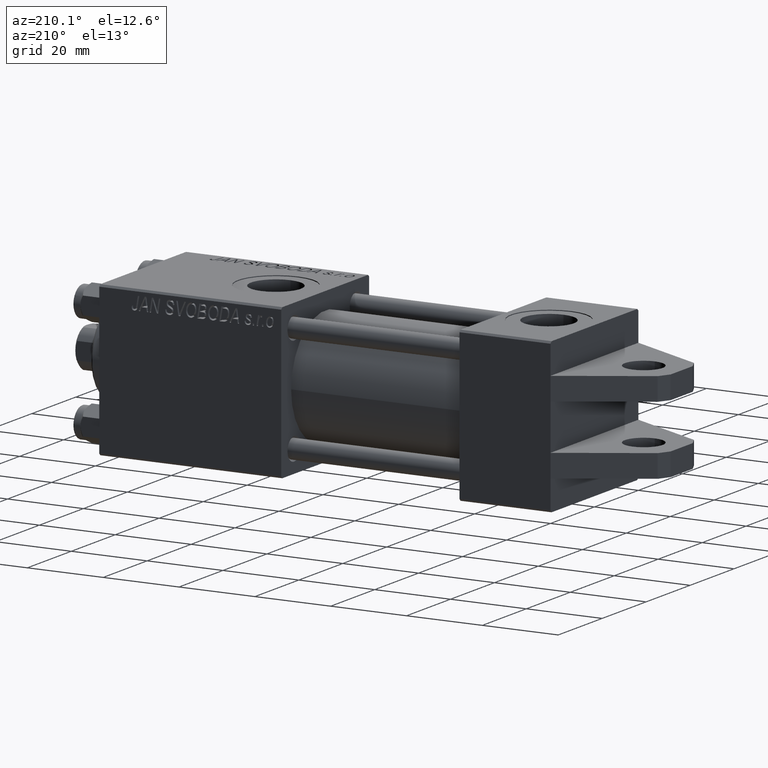
[diagram: clean part render]
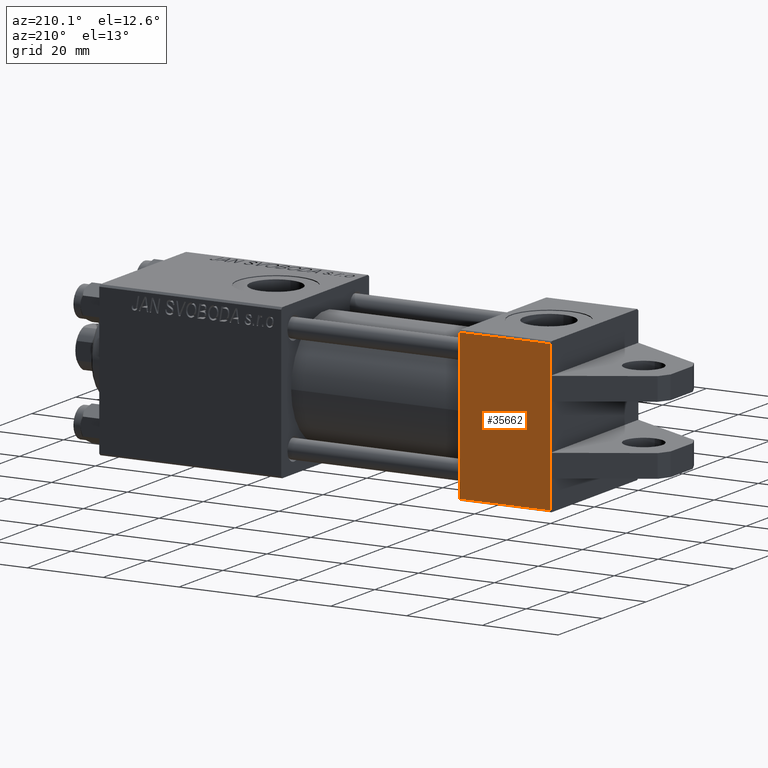
[diagram: same view with one face highlighted and labeled with its STEP entity id]
A machine part, auxiliary view. The second image highlights one B-rep face of the part: STEP entity #35662.
In plain terms, the highlighted planar face has unit normal (0, -1, -0).
Its self-contained STEP definition (entity closure, byte-faithful):
#609 = DIRECTION ( 'NONE',  ( -0.000000000000000000, -1.000000000000000000, -0.000000000000000000 ) ) ;
#702 = CARTESIAN_POINT ( 'NONE',  ( 24.00000000000000000, -19.49999999999999289, 19.99999999999998934 ) ) ;
#1001 = CARTESIAN_POINT ( 'NONE',  ( 24.00000000000000000, -19.49999999999999289, 19.99999999999998934 ) ) ;
#2197 = VECTOR ( 'NONE', #609, 1000.000000000000000 ) ;
#2300 = VECTOR ( 'NONE', #8480, 1000.000000000000000 ) ;
#3602 = ORIENTED_EDGE ( 'NONE', *, *, #26583, .T. ) ;
#3939 = CARTESIAN_POINT ( 'NONE',  ( 0.000000000000000000, 20.00000000000000000, 20.00000000000000000 ) ) ;
#3968 = LINE ( 'NONE', #702, #2300 ) ;
#4026 = ORIENTED_EDGE ( 'NONE', *, *, #27366, .F. ) ;
#4373 = LINE ( 'NONE', #34994, #2197 ) ;
#4385 = CARTESIAN_POINT ( 'NONE',  ( 0.000000000000000000, -12.00000000000000000, 19.99999999999999289 ) ) ;
#4868 = ORIENTED_EDGE ( 'NONE', *, *, #38655, .T. ) ;
#5478 = LINE ( 'NONE', #36827, #39793 ) ;
#6316 = VERTEX_POINT ( 'NONE', #14766 ) ;
#6573 = DIRECTION ( 'NONE',  ( 0.000000000000000000, -1.000000000000000000, -2.602085213965210149E-16 ) ) ;
#7953 = DIRECTION ( 'NONE',  ( 0.000000000000000000, 1.000000000000000000, 2.602085213965210149E-16 ) ) ;
#8303 = CARTESIAN_POINT ( 'NONE',  ( 0.000000000000000000, 20.00000000000000000, 20.00000000000000000 ) ) ;
#8480 = DIRECTION ( 'NONE',  ( 1.000000000000000000, 0.000000000000000000, 0.000000000000000000 ) ) ;
#9409 = VECTOR ( 'NONE', #19003, 1000.000000000000000 ) ;
#10222 = DIRECTION ( 'NONE',  ( -0.000000000000000000, 1.000000000000000000, -0.000000000000000000 ) ) ;
#11561 = LINE ( 'NONE', #49222, #19862 ) ;
#14766 = CARTESIAN_POINT ( 'NONE',  ( 0.000000000000000000, -19.49999999999999289, 19.99999999999998934 ) ) ;
#16655 = VECTOR ( 'NONE', #25007, 1000.000000000000000 ) ;
#17872 = CARTESIAN_POINT ( 'NONE',  ( 24.00000000000000000, 19.50000000000000000, 20.00000000000000000 ) ) ;
#18989 = DIRECTION ( 'NONE',  ( 0.000000000000000000, 2.602085213965210149E-16, -1.000000000000000000 ) ) ;
#19003 = DIRECTION ( 'NONE',  ( 0.000000000000000000, -1.000000000000000000, -2.602085213965210149E-16 ) ) ;
#19135 = VERTEX_POINT ( 'NONE', #29649 ) ;
#19862 = VECTOR ( 'NONE', #6573, 1000.000000000000000 ) ;
#22802 = CARTESIAN_POINT ( 'NONE',  ( 0.000000000000000000, 19.50000000000000000, 20.00000000000000000 ) ) ;
#22841 = VERTEX_POINT ( 'NONE', #4385 ) ;
#23600 = DIRECTION ( 'NONE',  ( 0.000000000000000000, -1.000000000000000000, -2.602085213965210149E-16 ) ) ;
#24073 = DIRECTION ( 'NONE',  ( -1.000000000000000000, 0.000000000000000000, 0.000000000000000000 ) ) ;
#24681 = VERTEX_POINT ( 'NONE', #1001 ) ;
#25007 = DIRECTION ( 'NONE',  ( 0.000000000000000000, -1.000000000000000000, -2.602085213965210149E-16 ) ) ;
#25292 = ORIENTED_EDGE ( 'NONE', *, *, #38412, .T. ) ;
#26205 = VECTOR ( 'NONE', #24073, 1000.000000000000000 ) ;
#26539 = LINE ( 'NONE', #3939, #9409 ) ;
#26583 = EDGE_CURVE ( 'NONE', #48235, #33767, #27375, .T. ) ;
#27126 = EDGE_LOOP ( 'NONE', ( #3602, #29870, #36416, #4026, #4868, #36073, #42725, #25292 ) ) ;
#27366 = EDGE_CURVE ( 'NONE', #22841, #19135, #5478, .T. ) ;
#27375 = LINE ( 'NONE', #8303, #49370 ) ;
#27831 = LINE ( 'NONE', #39386, #26205 ) ;
#28220 = VERTEX_POINT ( 'NONE', #34920 ) ;
#29649 = CARTESIAN_POINT ( 'NONE',  ( 0.000000000000000000, -6.000000000000000000, 19.99999999999998934 ) ) ;
#29870 = ORIENTED_EDGE ( 'NONE', *, *, #39085, .T. ) ;
#30608 = EDGE_CURVE ( 'NONE', #32835, #24681, #44093, .T. ) ;
#32835 = VERTEX_POINT ( 'NONE', #17872 ) ;
#33767 = VERTEX_POINT ( 'NONE', #38680 ) ;
#34549 = PLANE ( 'NONE',  #49401 ) ;
#34920 = CARTESIAN_POINT ( 'NONE',  ( 0.000000000000000000, 6.000000000000000000, 19.99999999999999645 ) ) ;
#34994 = CARTESIAN_POINT ( 'NONE',  ( 0.000000000000000000, 12.00000000000000000, 19.99999999999998934 ) ) ;
#35662 = ADVANCED_FACE ( 'NONE', ( #42330 ), #34549, .F. ) ;
#36067 = CARTESIAN_POINT ( 'NONE',  ( 24.00000000000000000, 20.00000000000000000, 20.00000000000000000 ) ) ;
#36073 = ORIENTED_EDGE ( 'NONE', *, *, #45462, .T. ) ;
#36416 = ORIENTED_EDGE ( 'NONE', *, *, #44193, .T. ) ;
#36827 = CARTESIAN_POINT ( 'NONE',  ( 0.000000000000000000, -12.00000000000000000, 19.99999999999998934 ) ) ;
#38412 = EDGE_CURVE ( 'NONE', #32835, #48235, #27831, .T. ) ;
#38655 = EDGE_CURVE ( 'NONE', #22841, #6316, #26539, .T. ) ;
#38680 = CARTESIAN_POINT ( 'NONE',  ( 0.000000000000000000, 12.00000000000000000, 19.99999999999999645 ) ) ;
#39085 = EDGE_CURVE ( 'NONE', #33767, #28220, #4373, .T. ) ;
#39386 = CARTESIAN_POINT ( 'NONE',  ( 0.000000000000000000, 19.50000000000000000, 20.00000000000000000 ) ) ;
#39793 = VECTOR ( 'NONE', #10222, 1000.000000000000000 ) ;
#42330 = FACE_OUTER_BOUND ( 'NONE', #27126, .T. ) ;
#42580 = CARTESIAN_POINT ( 'NONE',  ( 24.00000000000000000, 20.00000000000000000, 20.00000000000000000 ) ) ;
#42725 = ORIENTED_EDGE ( 'NONE', *, *, #30608, .F. ) ;
#44093 = LINE ( 'NONE', #36067, #16655 ) ;
#44193 = EDGE_CURVE ( 'NONE', #28220, #19135, #11561, .T. ) ;
#45462 = EDGE_CURVE ( 'NONE', #6316, #24681, #3968, .T. ) ;
#48235 = VERTEX_POINT ( 'NONE', #22802 ) ;
#49222 = CARTESIAN_POINT ( 'NONE',  ( 0.000000000000000000, 20.00000000000000000, 20.00000000000000000 ) ) ;
#49370 = VECTOR ( 'NONE', #23600, 1000.000000000000000 ) ;
#49401 = AXIS2_PLACEMENT_3D ( 'NONE', #42580, #18989, #7953 ) ;